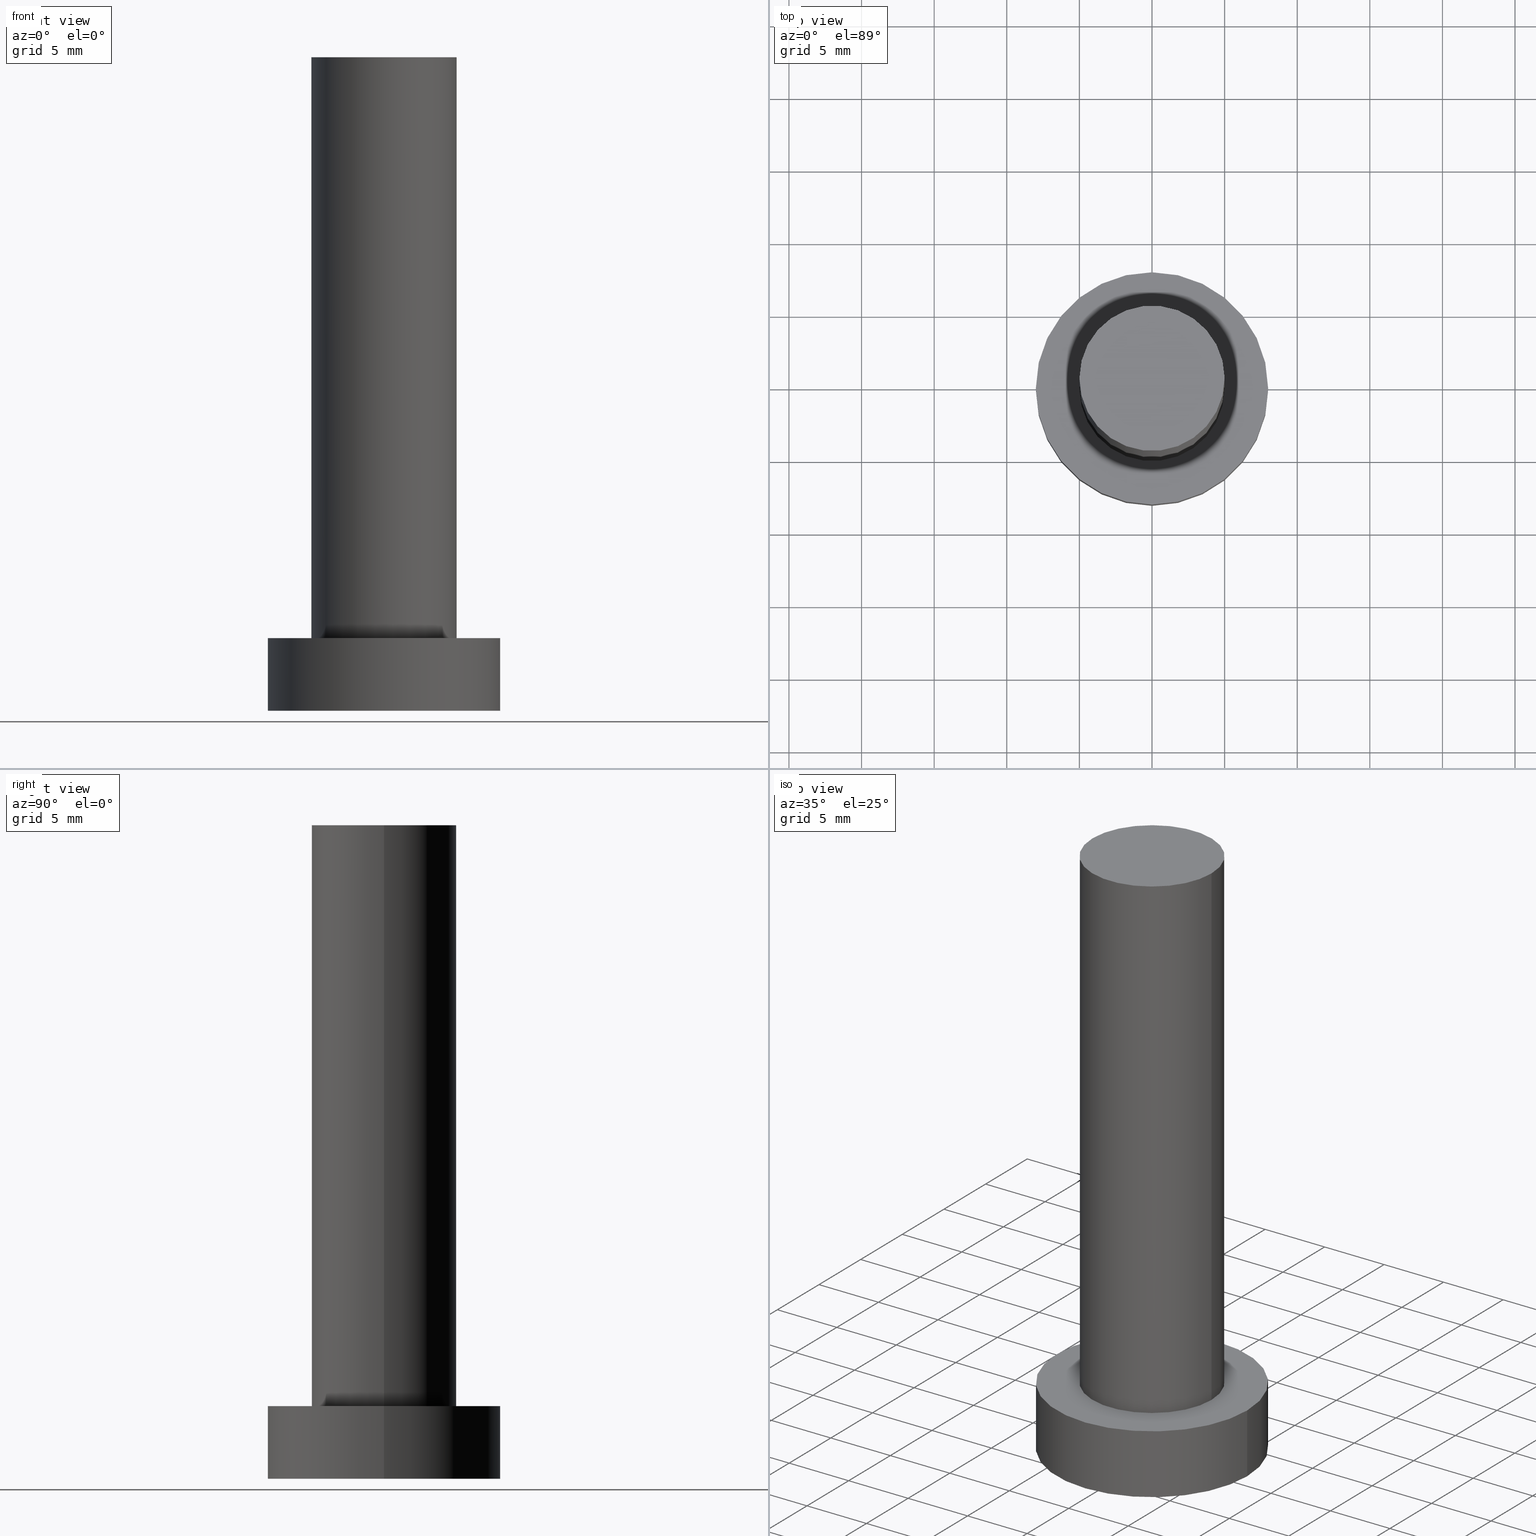
[diagram: canonical four-view strip — front | top / right | iso, engineering-drawing reading convention]
A machine part, canonical four-view strip (front | top / right | iso — engineering-drawing reading convention). The complete STEP part file that produces these views, byte-faithful:
ISO-10303-21;
HEADER;
FILE_DESCRIPTION (( 'STEP AP203' ),
    '1' );
FILE_NAME ('8f81.STEP',
    '2023-04-06T11:00:17',
    ( '' ),
    ( '' ),
    'SwSTEP 2.0',
    'SolidWorks 2019',
    '' );
FILE_SCHEMA (( 'CONFIG_CONTROL_DESIGN' ));
ENDSEC;

DATA;
#1 = EDGE_CURVE ( 'NONE', #68, #50, #127, .T. ) ;
#2 = CIRCLE ( 'NONE', #147, 5.000000000000000888 ) ;
#3 = PRODUCT_DEFINITION ( 'NEZN�M�', '', #94, #5 ) ;
#4 = ORIENTED_EDGE ( 'NONE', *, *, #157, .F. ) ;
#5 = DESIGN_CONTEXT ( 'detailed design', #197, 'design' ) ;
#6 = DIRECTION ( 'NONE',  ( 1.000000000000000000, 0.000000000000000000, -0.000000000000000000 ) ) ;
#7 = AXIS2_PLACEMENT_3D ( 'NONE', #169, #78, #58 ) ;
#8 = APPROVAL_PERSON_ORGANIZATION ( #152, #251, #80 ) ;
#9 = ORIENTED_EDGE ( 'NONE', *, *, #76, .T. ) ;
#10 = CARTESIAN_POINT ( 'NONE',  ( 0.000000000000000000, 0.000000000000000000, 45.00000000000000000 ) ) ;
#11 = ORIENTED_EDGE ( 'NONE', *, *, #25, .F. ) ;
#12 = EDGE_LOOP ( 'NONE', ( #165, #240 ) ) ;
#13 = DIRECTION ( 'NONE',  ( -1.000000000000000000, 0.000000000000000000, 0.000000000000000000 ) ) ;
#14 = DIRECTION ( 'NONE',  ( 0.000000000000000000, 0.000000000000000000, 1.000000000000000000 ) ) ;
#15 = EDGE_CURVE ( 'NONE', #221, #69, #118, .T. ) ;
#16 = CC_DESIGN_APPROVAL ( #29, ( #161 ) ) ;
#17 = CARTESIAN_POINT ( 'NONE',  ( 0.000000000000000000, 0.000000000000000000, 45.00000000000000000 ) ) ;
#18 = CARTESIAN_POINT ( 'NONE',  ( 0.000000000000000000, 0.000000000000000000, 45.00000000000000000 ) ) ;
#19 = COORDINATED_UNIVERSAL_TIME_OFFSET ( 1, 0, .AHEAD. ) ;
#20 = APPLICATION_PROTOCOL_DEFINITION ( 'international standard', 'config_control_design', 1994, #197 ) ;
#21 = APPROVAL_DATE_TIME ( #117, #29 ) ;
#22 = COORDINATED_UNIVERSAL_TIME_OFFSET ( 1, 0, .AHEAD. ) ;
#23 = PRODUCT_RELATED_PRODUCT_CATEGORY ( 'detail', '', ( #84 ) ) ;
#24 = APPLICATION_CONTEXT ( 'configuration controlled 3d designs of mechanical parts and assemblies' ) ;
#25 = EDGE_CURVE ( 'NONE', #124, #47, #158, .T. ) ;
#26 = ORIENTED_EDGE ( 'NONE', *, *, #15, .F. ) ;
#27 = ORIENTED_EDGE ( 'NONE', *, *, #187, .T. ) ;
#28 = LINE ( 'NONE', #107, #99 ) ;
#29 = APPROVAL ( #63, 'NEUR�EN�' ) ;
#30 = DIRECTION ( 'NONE',  ( 1.000000000000000000, 0.000000000000000000, 0.000000000000000000 ) ) ;
#31 = ORIENTED_EDGE ( 'NONE', *, *, #45, .F. ) ;
#32 =( NAMED_UNIT ( * ) SI_UNIT ( $, .STERADIAN. ) SOLID_ANGLE_UNIT ( ) );
#33 = DIRECTION ( 'NONE',  ( -1.000000000000000000, 0.000000000000000000, 0.000000000000000000 ) ) ;
#34 = DIRECTION ( 'NONE',  ( 0.000000000000000000, 0.000000000000000000, 1.000000000000000000 ) ) ;
#35 = CARTESIAN_POINT ( 'NONE',  ( 8.000000000000000000, 9.797174393178825657E-16, 0.000000000000000000 ) ) ;
#36 = FACE_OUTER_BOUND ( 'NONE', #12, .T. ) ;
#37 = CALENDAR_DATE ( 2023, 6, 4 ) ;
#38 = PRODUCT_DEFINITION_SHAPE ( 'NONE', 'NONE',  #3 ) ;
#39 = PERSON_AND_ORGANIZATION ( #140, #128 ) ;
#40 = PERSON_AND_ORGANIZATION ( #140, #128 ) ;
#41 = AXIS2_PLACEMENT_3D ( 'NONE', #164, #167, #6 ) ;
#42 = PERSON_AND_ORGANIZATION ( #140, #128 ) ;
#43 = PERSON_AND_ORGANIZATION_ROLE ( 'creator' ) ;
#44 = ADVANCED_FACE ( 'NONE', ( #188 ), #250, .T. ) ;
#45 = EDGE_CURVE ( 'NONE', #69, #124, #252, .T. ) ;
#46 = ORIENTED_EDGE ( 'NONE', *, *, #187, .F. ) ;
#47 = VERTEX_POINT ( 'NONE', #114 ) ;
#48 = CARTESIAN_POINT ( 'NONE',  ( -5.000000000000000888, 0.000000000000000000, 45.00000000000000000 ) ) ;
#49 = DIRECTION ( 'NONE',  ( 1.000000000000000000, 0.000000000000000000, 0.000000000000000000 ) ) ;
#50 = VERTEX_POINT ( 'NONE', #208 ) ;
#51 =( LENGTH_UNIT ( ) NAMED_UNIT ( * ) SI_UNIT ( .MILLI., .METRE. ) );
#52 = AXIS2_PLACEMENT_3D ( 'NONE', #88, #56, #243 ) ;
#53 = EDGE_LOOP ( 'NONE', ( #200, #129 ) ) ;
#54 = FACE_OUTER_BOUND ( 'NONE', #222, .T. ) ;
#55 = FACE_BOUND ( 'NONE', #53, .T. ) ;
#56 = DIRECTION ( 'NONE',  ( 0.000000000000000000, 0.000000000000000000, 1.000000000000000000 ) ) ;
#57 = EDGE_CURVE ( 'NONE', #91, #68, #113, .T. ) ;
#58 = DIRECTION ( 'NONE',  ( -1.000000000000000000, 0.000000000000000000, 0.000000000000000000 ) ) ;
#59 = DATE_AND_TIME ( #234, #215 ) ;
#60 = APPROVAL_PERSON_ORGANIZATION ( #40, #29, #195 ) ;
#61 = DATE_AND_TIME ( #133, #242 ) ;
#62 = ADVANCED_FACE ( 'NONE', ( #36 ), #210, .T. ) ;
#63 = APPROVAL_STATUS ( 'not_yet_approved' ) ;
#64 = AXIS2_PLACEMENT_3D ( 'NONE', #10, #202, #33 ) ;
#65 = CALENDAR_DATE ( 2023, 6, 4 ) ;
#66 = ADVANCED_FACE ( 'NONE', ( #55, #166 ), #75, .T. ) ;
#67 = CC_DESIGN_APPROVAL ( #162, ( #3 ) ) ;
#68 = VERTEX_POINT ( 'NONE', #160 ) ;
#69 = VERTEX_POINT ( 'NONE', #209 ) ;
#70 = CARTESIAN_POINT ( 'NONE',  ( 0.000000000000000000, 0.000000000000000000, 5.000000000000000000 ) ) ;
#71 = AXIS2_PLACEMENT_3D ( 'NONE', #101, #213, #155 ) ;
#72 = ORIENTED_EDGE ( 'NONE', *, *, #179, .T. ) ;
#73 = CARTESIAN_POINT ( 'NONE',  ( 0.000000000000000000, 0.000000000000000000, 5.000000000000000000 ) ) ;
#74 = DIRECTION ( 'NONE',  ( 0.000000000000000000, 0.000000000000000000, 1.000000000000000000 ) ) ;
#75 = PLANE ( 'NONE',  #182 ) ;
#76 = EDGE_CURVE ( 'NONE', #50, #206, #2, .T. ) ;
#77 = CARTESIAN_POINT ( 'NONE',  ( 0.000000000000000000, 0.000000000000000000, 0.000000000000000000 ) ) ;
#78 = DIRECTION ( 'NONE',  ( -0.000000000000000000, -0.000000000000000000, -1.000000000000000000 ) ) ;
#79 = DIRECTION ( 'NONE',  ( 1.000000000000000000, 0.000000000000000000, -0.000000000000000000 ) ) ;
#80 = APPROVAL_ROLE ( '' ) ;
#81 = CC_DESIGN_PERSON_AND_ORGANIZATION_ASSIGNMENT ( #39, #253, ( #94 ) ) ;
#82 = AXIS2_PLACEMENT_3D ( 'NONE', #77, #74, #49 ) ;
#83 = COORDINATED_UNIVERSAL_TIME_OFFSET ( 1, 0, .AHEAD. ) ;
#84 = PRODUCT ( '8f81', '8f81', '', ( #100 ) ) ;
#85 = CIRCLE ( 'NONE', #82, 8.000000000000000000 ) ;
#86 = CARTESIAN_POINT ( 'NONE',  ( -8.000000000000000000, 0.000000000000000000, 5.000000000000000000 ) ) ;
#87 = ORIENTED_EDGE ( 'NONE', *, *, #102, .F. ) ;
#88 = CARTESIAN_POINT ( 'NONE',  ( 0.000000000000000000, 0.000000000000000000, 5.000000000000000000 ) ) ;
#89 = ORIENTED_EDGE ( 'NONE', *, *, #157, .T. ) ;
#90 = CC_DESIGN_DATE_AND_TIME_ASSIGNMENT ( #61, #194, ( #3 ) ) ;
#91 = VERTEX_POINT ( 'NONE', #48 ) ;
#92 = DIRECTION ( 'NONE',  ( 0.000000000000000000, 0.000000000000000000, 1.000000000000000000 ) ) ;
#93 = CLOSED_SHELL ( 'NONE', ( #143, #198, #44, #66, #115, #176, #62 ) ) ;
#94 = PRODUCT_DEFINITION_FORMATION_WITH_SPECIFIED_SOURCE ( 'LIBOVOLN�', '', #84, .NOT_KNOWN. ) ;
#95 = DIRECTION ( 'NONE',  ( 1.000000000000000000, 0.000000000000000000, 0.000000000000000000 ) ) ;
#96 = PERSON_AND_ORGANIZATION ( #140, #128 ) ;
#97 = DIRECTION ( 'NONE',  ( 0.000000000000000000, 0.000000000000000000, 1.000000000000000000 ) ) ;
#98 = CALENDAR_DATE ( 2023, 6, 4 ) ;
#99 = VECTOR ( 'NONE', #112, 1000.000000000000000 ) ;
#100 = MECHANICAL_CONTEXT ( 'NONE', #24, 'mechanical' ) ;
#101 = CARTESIAN_POINT ( 'NONE',  ( 0.000000000000000000, 0.000000000000000000, 0.000000000000000000 ) ) ;
#102 = EDGE_CURVE ( 'NONE', #47, #124, #85, .T. ) ;
#103 =( GEOMETRIC_REPRESENTATION_CONTEXT ( 3 ) GLOBAL_UNCERTAINTY_ASSIGNED_CONTEXT ( ( #106 ) ) GLOBAL_UNIT_ASSIGNED_CONTEXT ( ( #51, #110, #32 ) ) REPRESENTATION_CONTEXT ( 'NONE', 'WORKASPACE' ) );
#104 = CC_DESIGN_SECURITY_CLASSIFICATION ( #161, ( #94 ) ) ;
#105 = ORIENTED_EDGE ( 'NONE', *, *, #137, .T. ) ;
#106 = UNCERTAINTY_MEASURE_WITH_UNIT (LENGTH_MEASURE( 1.000000000000000082E-05 ), #51, 'distance_accuracy_value', 'NONE');
#107 = CARTESIAN_POINT ( 'NONE',  ( -5.000000000000000888, 0.000000000000000000, 45.00000000000000000 ) ) ;
#108 = ORIENTED_EDGE ( 'NONE', *, *, #119, .F. ) ;
#109 = ORIENTED_EDGE ( 'NONE', *, *, #179, .F. ) ;
#110 =( NAMED_UNIT ( * ) PLANE_ANGLE_UNIT ( ) SI_UNIT ( $, .RADIAN. ) );
#111 = CARTESIAN_POINT ( 'NONE',  ( 0.000000000000000000, 0.000000000000000000, 5.000000000000000000 ) ) ;
#112 = DIRECTION ( 'NONE',  ( -0.000000000000000000, -0.000000000000000000, -1.000000000000000000 ) ) ;
#113 = CIRCLE ( 'NONE', #122, 5.000000000000000888 ) ;
#114 = CARTESIAN_POINT ( 'NONE',  ( -8.000000000000000000, 0.000000000000000000, 0.000000000000000000 ) ) ;
#115 = ADVANCED_FACE ( 'NONE', ( #227 ), #126, .F. ) ;
#116 = APPROVAL_STATUS ( 'not_yet_approved' ) ;
#117 = DATE_AND_TIME ( #98, #123 ) ;
#118 = CIRCLE ( 'NONE', #235, 8.000000000000000000 ) ;
#119 = EDGE_CURVE ( 'NONE', #68, #91, #174, .T. ) ;
#120 = DATE_TIME_ROLE ( 'classification_date' ) ;
#121 = VECTOR ( 'NONE', #172, 1000.000000000000000 ) ;
#122 = AXIS2_PLACEMENT_3D ( 'NONE', #151, #228, #226 ) ;
#123 = LOCAL_TIME ( 13, 0, 17.00000000000000000, #19 ) ;
#124 = VERTEX_POINT ( 'NONE', #35 ) ;
#125 = DIRECTION ( 'NONE',  ( -0.000000000000000000, -0.000000000000000000, -1.000000000000000000 ) ) ;
#126 = PLANE ( 'NONE',  #41 ) ;
#127 = LINE ( 'NONE', #203, #141 ) ;
#128 = ORGANIZATION ( 'NEUR�EN�', 'NEUR�EN�', '' ) ;
#129 = ORIENTED_EDGE ( 'NONE', *, *, #76, .F. ) ;
#130 = DIRECTION ( 'NONE',  ( 1.000000000000000000, 0.000000000000000000, 0.000000000000000000 ) ) ;
#131 = DIRECTION ( 'NONE',  ( -1.000000000000000000, 0.000000000000000000, 0.000000000000000000 ) ) ;
#132 = CARTESIAN_POINT ( 'NONE',  ( 0.000000000000000000, 0.000000000000000000, 0.000000000000000000 ) ) ;
#133 = CALENDAR_DATE ( 2023, 6, 4 ) ;
#134 = CIRCLE ( 'NONE', #138, 8.000000000000000000 ) ;
#135 = PERSON_AND_ORGANIZATION ( #140, #128 ) ;
#136 = APPROVAL_DATE_TIME ( #59, #162 ) ;
#137 = EDGE_CURVE ( 'NONE', #206, #50, #230, .T. ) ;
#138 = AXIS2_PLACEMENT_3D ( 'NONE', #73, #220, #30 ) ;
#139 = APPROVAL_DATE_TIME ( #214, #251 ) ;
#140 = PERSON ( 'NEUR�EN�', 'NEUR�EN�', 'NEUR�EN�', ('NEUR�EN�'), ('NEUR�EN�'), ('NEUR�EN�') ) ;
#141 = VECTOR ( 'NONE', #184, 1000.000000000000000 ) ;
#142 = ORIENTED_EDGE ( 'NONE', *, *, #102, .T. ) ;
#143 = ADVANCED_FACE ( 'NONE', ( #225 ), #144, .T. ) ;
#144 = CYLINDRICAL_SURFACE ( 'NONE', #175, 5.000000000000000888 ) ;
#145 = EDGE_LOOP ( 'NONE', ( #108, #181, #9, #46 ) ) ;
#146 = CARTESIAN_POINT ( 'NONE',  ( -8.000000000000000000, 0.000000000000000000, 5.000000000000000000 ) ) ;
#147 = AXIS2_PLACEMENT_3D ( 'NONE', #241, #92, #150 ) ;
#148 = CYLINDRICAL_SURFACE ( 'NONE', #64, 5.000000000000000888 ) ;
#149 = CARTESIAN_POINT ( 'NONE',  ( 0.000000000000000000, 0.000000000000000000, 5.000000000000000000 ) ) ;
#150 = DIRECTION ( 'NONE',  ( 1.000000000000000000, 0.000000000000000000, 0.000000000000000000 ) ) ;
#151 = CARTESIAN_POINT ( 'NONE',  ( 0.000000000000000000, 0.000000000000000000, 45.00000000000000000 ) ) ;
#152 = PERSON_AND_ORGANIZATION ( #140, #128 ) ;
#153 = AXIS2_PLACEMENT_3D ( 'NONE', #18, #247, #79 ) ;
#154 = LOCAL_TIME ( 13, 0, 17.00000000000000000, #171 ) ;
#155 = DIRECTION ( 'NONE',  ( 1.000000000000000000, 0.000000000000000000, 0.000000000000000000 ) ) ;
#156 = APPROVAL_STATUS ( 'not_yet_approved' ) ;
#157 = EDGE_CURVE ( 'NONE', #221, #47, #207, .T. ) ;
#158 = CIRCLE ( 'NONE', #248, 8.000000000000000000 ) ;
#159 = ORIENTED_EDGE ( 'NONE', *, *, #57, .F. ) ;
#160 = CARTESIAN_POINT ( 'NONE',  ( 5.000000000000000888, 6.123233995736767268E-16, 45.00000000000000000 ) ) ;
#161 = SECURITY_CLASSIFICATION ( '', '', #192 ) ;
#162 = APPROVAL ( #156, 'NEUR�EN�' ) ;
#163 = EDGE_LOOP ( 'NONE', ( #219, #72 ) ) ;
#164 = CARTESIAN_POINT ( 'NONE',  ( 0.000000000000000000, 0.000000000000000000, 0.000000000000000000 ) ) ;
#165 = ORIENTED_EDGE ( 'NONE', *, *, #57, .T. ) ;
#166 = FACE_OUTER_BOUND ( 'NONE', #163, .T. ) ;
#167 = DIRECTION ( 'NONE',  ( 0.000000000000000000, 0.000000000000000000, 1.000000000000000000 ) ) ;
#168 = AXIS2_PLACEMENT_3D ( 'NONE', #70, #180, #13 ) ;
#169 = CARTESIAN_POINT ( 'NONE',  ( 0.000000000000000000, 0.000000000000000000, 5.000000000000000000 ) ) ;
#170 = CC_DESIGN_DATE_AND_TIME_ASSIGNMENT ( #191, #120, ( #161 ) ) ;
#171 = COORDINATED_UNIVERSAL_TIME_OFFSET ( 1, 0, .AHEAD. ) ;
#172 = DIRECTION ( 'NONE',  ( -0.000000000000000000, -0.000000000000000000, -1.000000000000000000 ) ) ;
#173 = SHAPE_DEFINITION_REPRESENTATION ( #38, #196 ) ;
#174 = CIRCLE ( 'NONE', #204, 5.000000000000000888 ) ;
#175 = AXIS2_PLACEMENT_3D ( 'NONE', #17, #245, #131 ) ;
#176 = ADVANCED_FACE ( 'NONE', ( #54 ), #148, .T. ) ;
#177 = PERSON_AND_ORGANIZATION ( #140, #128 ) ;
#178 = EDGE_LOOP ( 'NONE', ( #109, #218, #244, #4 ) ) ;
#179 = EDGE_CURVE ( 'NONE', #69, #221, #134, .T. ) ;
#180 = DIRECTION ( 'NONE',  ( -0.000000000000000000, -0.000000000000000000, -1.000000000000000000 ) ) ;
#181 = ORIENTED_EDGE ( 'NONE', *, *, #1, .T. ) ;
#182 = AXIS2_PLACEMENT_3D ( 'NONE', #111, #34, #249 ) ;
#183 = DIRECTION ( 'NONE',  ( 1.000000000000000000, 0.000000000000000000, 0.000000000000000000 ) ) ;
#184 = DIRECTION ( 'NONE',  ( -0.000000000000000000, -0.000000000000000000, -1.000000000000000000 ) ) ;
#185 = ORIENTED_EDGE ( 'NONE', *, *, #1, .F. ) ;
#186 = FACE_OUTER_BOUND ( 'NONE', #178, .T. ) ;
#187 = EDGE_CURVE ( 'NONE', #91, #206, #28, .T. ) ;
#188 = FACE_OUTER_BOUND ( 'NONE', #224, .T. ) ;
#189 = CYLINDRICAL_SURFACE ( 'NONE', #168, 8.000000000000000000 ) ;
#190 = CARTESIAN_POINT ( 'NONE',  ( 8.000000000000000000, 9.797174393178825657E-16, 5.000000000000000000 ) ) ;
#191 = DATE_AND_TIME ( #37, #205 ) ;
#192 = SECURITY_CLASSIFICATION_LEVEL ( 'unclassified' ) ;
#193 = APPROVAL_PERSON_ORGANIZATION ( #135, #162, #232 ) ;
#194 = DATE_TIME_ROLE ( 'creation_date' ) ;
#195 = APPROVAL_ROLE ( '' ) ;
#196 = ADVANCED_BREP_SHAPE_REPRESENTATION ( '8f81', ( #237, #71 ), #103 ) ;
#197 = APPLICATION_CONTEXT ( 'configuration controlled 3d designs of mechanical parts and assemblies' ) ;
#198 = ADVANCED_FACE ( 'NONE', ( #186 ), #189, .T. ) ;
#199 = CC_DESIGN_APPROVAL ( #251, ( #94 ) ) ;
#200 = ORIENTED_EDGE ( 'NONE', *, *, #137, .F. ) ;
#201 = CARTESIAN_POINT ( 'NONE',  ( 0.000000000000000000, 0.000000000000000000, 45.00000000000000000 ) ) ;
#202 = DIRECTION ( 'NONE',  ( -0.000000000000000000, -0.000000000000000000, -1.000000000000000000 ) ) ;
#203 = CARTESIAN_POINT ( 'NONE',  ( 5.000000000000000888, 6.123233995736767268E-16, 45.00000000000000000 ) ) ;
#204 = AXIS2_PLACEMENT_3D ( 'NONE', #201, #246, #183 ) ;
#205 = LOCAL_TIME ( 13, 0, 17.00000000000000000, #83 ) ;
#206 = VERTEX_POINT ( 'NONE', #223 ) ;
#207 = LINE ( 'NONE', #146, #236 ) ;
#208 = CARTESIAN_POINT ( 'NONE',  ( 5.000000000000000888, 6.123233995736767268E-16, 5.000000000000000000 ) ) ;
#209 = CARTESIAN_POINT ( 'NONE',  ( 8.000000000000000000, 9.797174393178825657E-16, 5.000000000000000000 ) ) ;
#210 = PLANE ( 'NONE',  #153 ) ;
#211 = PERSON_AND_ORGANIZATION_ROLE ( 'design_supplier' ) ;
#212 = CC_DESIGN_PERSON_AND_ORGANIZATION_ASSIGNMENT ( #177, #254, ( #84 ) ) ;
#213 = DIRECTION ( 'NONE',  ( 0.000000000000000000, 0.000000000000000000, 1.000000000000000000 ) ) ;
#214 = DATE_AND_TIME ( #65, #154 ) ;
#215 = LOCAL_TIME ( 13, 0, 17.00000000000000000, #22 ) ;
#216 = PERSON_AND_ORGANIZATION_ROLE ( 'classification_officer' ) ;
#217 = CC_DESIGN_PERSON_AND_ORGANIZATION_ASSIGNMENT ( #96, #43, ( #3 ) ) ;
#218 = ORIENTED_EDGE ( 'NONE', *, *, #45, .T. ) ;
#219 = ORIENTED_EDGE ( 'NONE', *, *, #15, .T. ) ;
#220 = DIRECTION ( 'NONE',  ( 0.000000000000000000, 0.000000000000000000, 1.000000000000000000 ) ) ;
#221 = VERTEX_POINT ( 'NONE', #86 ) ;
#222 = EDGE_LOOP ( 'NONE', ( #185, #159, #27, #105 ) ) ;
#223 = CARTESIAN_POINT ( 'NONE',  ( -5.000000000000000888, 0.000000000000000000, 5.000000000000000000 ) ) ;
#224 = EDGE_LOOP ( 'NONE', ( #31, #26, #89, #142 ) ) ;
#225 = FACE_OUTER_BOUND ( 'NONE', #145, .T. ) ;
#226 = DIRECTION ( 'NONE',  ( 1.000000000000000000, 0.000000000000000000, 0.000000000000000000 ) ) ;
#227 = FACE_OUTER_BOUND ( 'NONE', #239, .T. ) ;
#228 = DIRECTION ( 'NONE',  ( 0.000000000000000000, 0.000000000000000000, 1.000000000000000000 ) ) ;
#229 = APPLICATION_PROTOCOL_DEFINITION ( 'international standard', 'config_control_design', 1994, #24 ) ;
#230 = CIRCLE ( 'NONE', #52, 5.000000000000000888 ) ;
#231 = PERSON_AND_ORGANIZATION ( #140, #128 ) ;
#232 = APPROVAL_ROLE ( '' ) ;
#233 = COORDINATED_UNIVERSAL_TIME_OFFSET ( 1, 0, .AHEAD. ) ;
#234 = CALENDAR_DATE ( 2023, 6, 4 ) ;
#235 = AXIS2_PLACEMENT_3D ( 'NONE', #149, #14, #95 ) ;
#236 = VECTOR ( 'NONE', #125, 1000.000000000000000 ) ;
#237 = MANIFOLD_SOLID_BREP ( 'P�idat vysunut�m3', #93 ) ;
#238 = CC_DESIGN_PERSON_AND_ORGANIZATION_ASSIGNMENT ( #231, #211, ( #94 ) ) ;
#239 = EDGE_LOOP ( 'NONE', ( #87, #11 ) ) ;
#240 = ORIENTED_EDGE ( 'NONE', *, *, #119, .T. ) ;
#241 = CARTESIAN_POINT ( 'NONE',  ( 0.000000000000000000, 0.000000000000000000, 5.000000000000000000 ) ) ;
#242 = LOCAL_TIME ( 13, 0, 17.00000000000000000, #233 ) ;
#243 = DIRECTION ( 'NONE',  ( 1.000000000000000000, 0.000000000000000000, 0.000000000000000000 ) ) ;
#244 = ORIENTED_EDGE ( 'NONE', *, *, #25, .T. ) ;
#245 = DIRECTION ( 'NONE',  ( -0.000000000000000000, -0.000000000000000000, -1.000000000000000000 ) ) ;
#246 = DIRECTION ( 'NONE',  ( 0.000000000000000000, 0.000000000000000000, 1.000000000000000000 ) ) ;
#247 = DIRECTION ( 'NONE',  ( 0.000000000000000000, 0.000000000000000000, 1.000000000000000000 ) ) ;
#248 = AXIS2_PLACEMENT_3D ( 'NONE', #132, #97, #130 ) ;
#249 = DIRECTION ( 'NONE',  ( 1.000000000000000000, 0.000000000000000000, -0.000000000000000000 ) ) ;
#250 = CYLINDRICAL_SURFACE ( 'NONE', #7, 8.000000000000000000 ) ;
#251 = APPROVAL ( #116, 'NEUR�EN�' ) ;
#252 = LINE ( 'NONE', #190, #121 ) ;
#253 = PERSON_AND_ORGANIZATION_ROLE ( 'creator' ) ;
#254 = PERSON_AND_ORGANIZATION_ROLE ( 'design_owner' ) ;
#255 = CC_DESIGN_PERSON_AND_ORGANIZATION_ASSIGNMENT ( #42, #216, ( #161 ) ) ;
ENDSEC;
END-ISO-10303-21;
